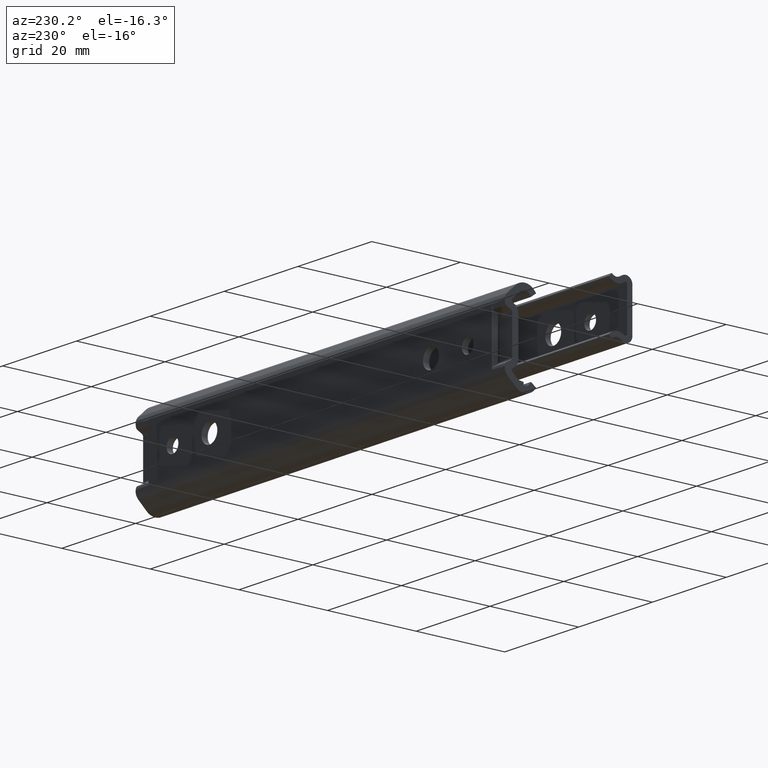
[diagram: clean part render]
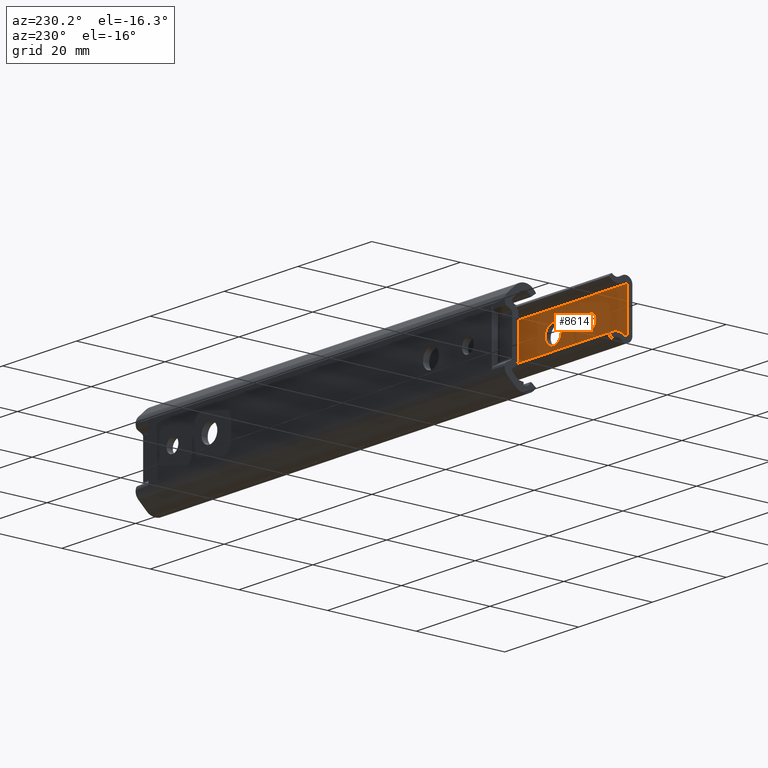
[diagram: same view with one face highlighted and labeled with its STEP entity id]
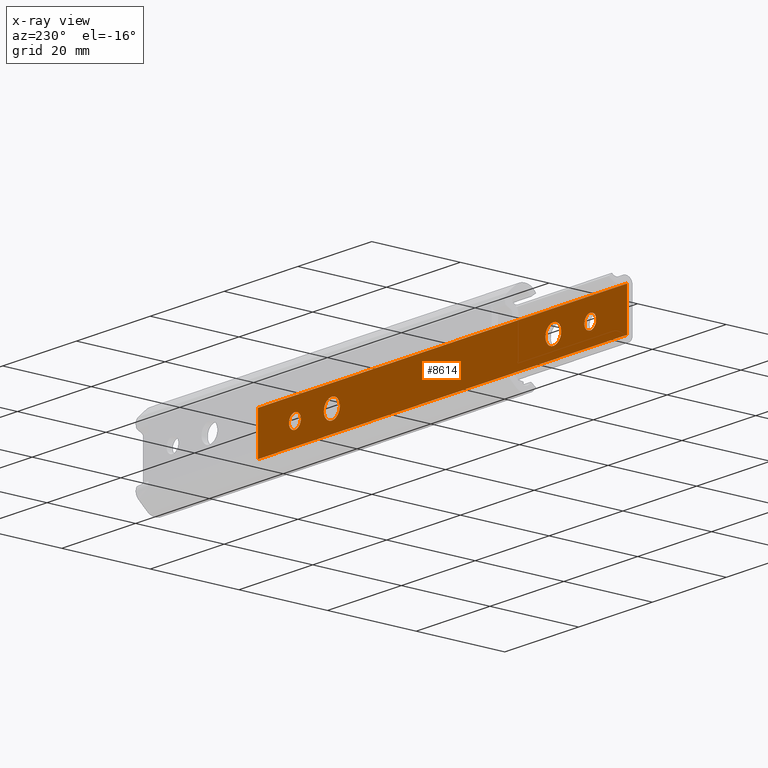
[diagram: x-ray of the same camera — body ghosted, the highlighted face saturated]
A machine part, auxiliary view. The second image highlights one B-rep face of the part: STEP entity #8614.
The next image is the same camera in x-ray: the body ghosted, the highlighted face saturated — about 0% of this face is hidden behind the body in this view.
In plain terms, the highlighted face is a freeform B-spline surface patch.
Its self-contained STEP definition (entity closure, byte-faithful):
#7496=CARTESIAN_POINT('',(-16.588815242049389,-6.800000000000001,0.188854776565360));
#7497=VERTEX_POINT('',#7496);
#7498=CARTESIAN_POINT('',(-15.0,-6.800000000000000,-1.600000000000000));
#7499=VERTEX_POINT('',#7498);
#7500=CARTESIAN_POINT('',(-16.588815242049389,-6.800000000000002,0.188854776565360));
#7501=CARTESIAN_POINT('',(-16.600000000000005,-6.800000000000001,0.094758592569386));
#7502=CARTESIAN_POINT('',(-16.600000000000001,-6.800000000000000,0.0));
#7503=CARTESIAN_POINT('',(-16.600000000000001,-6.800000000000002,-1.600000000000000));
#7504=CARTESIAN_POINT('',(-15.0,-6.800000000000000,-1.600000000000000));
#7512=(BOUNDED_CURVE()B_SPLINE_CURVE(2,(#7500,#7501,#7502,#7503,#7504),.UNSPECIFIED.,.F.,.U.)B_SPLINE_CURVE_WITH_KNOTS((3,2,3),(0.729562473278534,0.750000000000000,1.0),.UNSPECIFIED.)CURVE()GEOMETRIC_REPRESENTATION_ITEM()RATIONAL_B_SPLINE_CURVE((0.956026753723140,0.976055948055856,1.0,0.707106781186548,1.0))REPRESENTATION_ITEM(''));
#7513=EDGE_CURVE('',#7497,#7499,#7512,.T.);
#7554=CARTESIAN_POINT('',(-13.402984322553239,-6.800000000000000,-0.097677663717326));
#7555=VERTEX_POINT('',#7554);
#7561=CARTESIAN_POINT('',(-15.0,-6.800000000000000,-1.600000000000000));
#7562=CARTESIAN_POINT('',(-13.494870293822512,-6.800000000000002,-1.600000000000001));
#7563=CARTESIAN_POINT('',(-13.402984322553246,-6.800000000000000,-0.097677663717326));
#7571=(BOUNDED_CURVE()B_SPLINE_CURVE(2,(#7561,#7562,#7563),.UNSPECIFIED.,.F.,.U.)B_SPLINE_CURVE_WITH_KNOTS((3,3),(0.0,0.239332962142233),.UNSPECIFIED.)CURVE()GEOMETRIC_REPRESENTATION_ITEM()RATIONAL_B_SPLINE_CURVE((1.0,0.719603993400013,0.976072041459449))REPRESENTATION_ITEM(''));
#7572=EDGE_CURVE('',#7499,#7555,#7571,.T.);
#7595=CARTESIAN_POINT('',(-15.0,-6.800000000000000,1.600000000000000));
#7596=VERTEX_POINT('',#7595);
#7597=CARTESIAN_POINT('',(-15.0,-6.800000000000000,1.600000000000000));
#7598=CARTESIAN_POINT('',(-16.421079239514395,-6.800000000000000,1.599999999999999));
#7599=CARTESIAN_POINT('',(-16.588815242049392,-6.800000000000001,0.188854776565360));
#7607=(BOUNDED_CURVE()B_SPLINE_CURVE(2,(#7597,#7598,#7599),.UNSPECIFIED.,.F.,.U.)B_SPLINE_CURVE_WITH_KNOTS((3,3),(0.500000000000000,0.729562473278535),.UNSPECIFIED.)CURVE()GEOMETRIC_REPRESENTATION_ITEM()RATIONAL_B_SPLINE_CURVE((1.0,0.731050833130691,0.956026753723142))REPRESENTATION_ITEM(''));
#7608=EDGE_CURVE('',#7596,#7497,#7607,.T.);
#7610=CARTESIAN_POINT('',(-13.402984322553246,-6.800000000000001,-0.097677663717326));
#7611=CARTESIAN_POINT('',(-13.400000000000000,-6.800000000000001,-0.048884421740591));
#7612=CARTESIAN_POINT('',(-13.400000000000000,-6.800000000000000,0.0));
#7613=CARTESIAN_POINT('',(-13.399999999999999,-6.800000000000002,1.600000000000000));
#7614=CARTESIAN_POINT('',(-15.0,-6.800000000000000,1.600000000000000));
#7622=(BOUNDED_CURVE()B_SPLINE_CURVE(2,(#7610,#7611,#7612,#7613,#7614),.UNSPECIFIED.,.F.,.U.)B_SPLINE_CURVE_WITH_KNOTS((3,2,3),(0.239332962142233,0.250000000000000,0.500000000000000),.UNSPECIFIED.)CURVE()GEOMETRIC_REPRESENTATION_ITEM()RATIONAL_B_SPLINE_CURVE((0.976072041459449,0.987502787786534,1.0,0.707106781186548,1.0))REPRESENTATION_ITEM(''));
#7623=EDGE_CURVE('',#7555,#7596,#7622,.T.);
#7682=CARTESIAN_POINT('',(-7.134970481671571,-6.800000000000000,0.253773604598790));
#7683=VERTEX_POINT('',#7682);
#7684=CARTESIAN_POINT('',(-5.0,-6.800000000000000,-2.150000000000000));
#7685=VERTEX_POINT('',#7684);
#7686=CARTESIAN_POINT('',(-7.134970481671571,-6.800000000000000,0.253773604598790));
#7687=CARTESIAN_POINT('',(-7.150000000000000,-6.800000000000000,0.127331857339283));
#7688=CARTESIAN_POINT('',(-7.150000000000000,-6.800000000000000,0.0));
#7689=CARTESIAN_POINT('',(-7.150000000000003,-6.800000000000003,-2.150000000000000));
#7690=CARTESIAN_POINT('',(-5.0,-6.800000000000000,-2.150000000000000));
#7698=(BOUNDED_CURVE()B_SPLINE_CURVE(2,(#7686,#7687,#7688,#7689,#7690),.UNSPECIFIED.,.F.,.U.)B_SPLINE_CURVE_WITH_KNOTS((3,2,3),(0.729562473501909,0.750000000000000,1.0),.UNSPECIFIED.)CURVE()GEOMETRIC_REPRESENTATION_ITEM()RATIONAL_B_SPLINE_CURVE((0.956026754160963,0.976055948317555,1.0,0.707106781186547,1.0))REPRESENTATION_ITEM(''));
#7699=EDGE_CURVE('',#7683,#7685,#7698,.T.);
#7740=CARTESIAN_POINT('',(-2.854010183405838,-6.800000000000000,-0.131254360210068));
#7741=VERTEX_POINT('',#7740);
#7747=CARTESIAN_POINT('',(-5.0,-6.800000000000000,-2.150000000000000));
#7748=CARTESIAN_POINT('',(-2.977481956549565,-6.800000000000001,-2.150000000000000));
#7749=CARTESIAN_POINT('',(-2.854010183405838,-6.800000000000001,-0.131254360210068));
#7757=(BOUNDED_CURVE()B_SPLINE_CURVE(2,(#7747,#7748,#7749),.UNSPECIFIED.,.F.,.U.)B_SPLINE_CURVE_WITH_KNOTS((3,3),(0.0,0.239332962208178),.UNSPECIFIED.)CURVE()GEOMETRIC_REPRESENTATION_ITEM()RATIONAL_B_SPLINE_CURVE((1.0,0.719603993322753,0.976072041600784))REPRESENTATION_ITEM(''));
#7758=EDGE_CURVE('',#7685,#7741,#7757,.T.);
#7781=CARTESIAN_POINT('',(-5.0,-6.800000000000000,2.150000000000000));
#7782=VERTEX_POINT('',#7781);
#7783=CARTESIAN_POINT('',(-5.0,-6.800000000000000,2.150000000000000));
#7784=CARTESIAN_POINT('',(-6.909575230639137,-6.800000000000000,2.150000000000000));
#7785=CARTESIAN_POINT('',(-7.134970481671570,-6.800000000000000,0.253773604598790));
#7793=(BOUNDED_CURVE()B_SPLINE_CURVE(2,(#7783,#7784,#7785),.UNSPECIFIED.,.F.,.U.)B_SPLINE_CURVE_WITH_KNOTS((3,3),(0.500000000000000,0.729562473501908),.UNSPECIFIED.)CURVE()GEOMETRIC_REPRESENTATION_ITEM()RATIONAL_B_SPLINE_CURVE((1.0,0.731050832868994,0.956026754160961))REPRESENTATION_ITEM(''));
#7794=EDGE_CURVE('',#7782,#7683,#7793,.T.);
#7796=CARTESIAN_POINT('',(-2.854010183405838,-6.800000000000001,-0.131254360210068));
#7797=CARTESIAN_POINT('',(-2.850000000000000,-6.799999999999999,-0.065688441302680));
#7798=CARTESIAN_POINT('',(-2.850000000000000,-6.800000000000000,0.0));
#7799=CARTESIAN_POINT('',(-2.850000000000000,-6.800000000000003,2.150000000000000));
#7800=CARTESIAN_POINT('',(-5.0,-6.800000000000000,2.150000000000000));
#7808=(BOUNDED_CURVE()B_SPLINE_CURVE(2,(#7796,#7797,#7798,#7799,#7800),.UNSPECIFIED.,.F.,.U.)B_SPLINE_CURVE_WITH_KNOTS((3,2,3),(0.239332962208178,0.250000000000000,0.500000000000000),.UNSPECIFIED.)CURVE()GEOMETRIC_REPRESENTATION_ITEM()RATIONAL_B_SPLINE_CURVE((0.976072041600784,0.987502787863795,1.0,0.707106781186547,1.0))REPRESENTATION_ITEM(''));
#7809=EDGE_CURVE('',#7741,#7782,#7808,.T.);
#7868=CARTESIAN_POINT('',(52.865029518328427,-6.800000000000001,0.253773604598791));
#7869=VERTEX_POINT('',#7868);
#7870=CARTESIAN_POINT('',(55.0,-6.800000000000000,-2.150000000000000));
#7871=VERTEX_POINT('',#7870);
#7872=CARTESIAN_POINT('',(52.865029518328427,-6.800000000000001,0.253773604598791));
#7873=CARTESIAN_POINT('',(52.850000000000001,-6.800000000000000,0.127331857339284));
#7874=CARTESIAN_POINT('',(52.850000000000001,-6.800000000000000,0.0));
#7875=CARTESIAN_POINT('',(52.850000000000016,-6.800000000000003,-2.150000000000000));
#7876=CARTESIAN_POINT('',(55.0,-6.800000000000000,-2.150000000000000));
#7884=(BOUNDED_CURVE()B_SPLINE_CURVE(2,(#7872,#7873,#7874,#7875,#7876),.UNSPECIFIED.,.F.,.U.)B_SPLINE_CURVE_WITH_KNOTS((3,2,3),(0.729562473501909,0.750000000000000,1.0),.UNSPECIFIED.)CURVE()GEOMETRIC_REPRESENTATION_ITEM()RATIONAL_B_SPLINE_CURVE((0.956026754160963,0.976055948317555,1.0,0.707106781186547,1.0))REPRESENTATION_ITEM(''));
#7885=EDGE_CURVE('',#7869,#7871,#7884,.T.);
#7926=CARTESIAN_POINT('',(57.145989816594160,-6.800000000000001,-0.131254360210067));
#7927=VERTEX_POINT('',#7926);
#7933=CARTESIAN_POINT('',(55.0,-6.800000000000000,-2.150000000000000));
#7934=CARTESIAN_POINT('',(57.022518043450425,-6.800000000000001,-2.150000000000000));
#7935=CARTESIAN_POINT('',(57.145989816594160,-6.800000000000001,-0.131254360210067));
#7943=(BOUNDED_CURVE()B_SPLINE_CURVE(2,(#7933,#7934,#7935),.UNSPECIFIED.,.F.,.U.)B_SPLINE_CURVE_WITH_KNOTS((3,3),(0.0,0.239332962208179),.UNSPECIFIED.)CURVE()GEOMETRIC_REPRESENTATION_ITEM()RATIONAL_B_SPLINE_CURVE((1.0,0.719603993322753,0.976072041600784))REPRESENTATION_ITEM(''));
#7944=EDGE_CURVE('',#7871,#7927,#7943,.T.);
#7967=CARTESIAN_POINT('',(55.0,-6.800000000000000,2.150000000000000));
#7968=VERTEX_POINT('',#7967);
#7969=CARTESIAN_POINT('',(55.0,-6.800000000000000,2.150000000000000));
#7970=CARTESIAN_POINT('',(53.090424769360865,-6.800000000000000,2.150000000000000));
#7971=CARTESIAN_POINT('',(52.865029518328434,-6.800000000000001,0.253773604598791));
#7979=(BOUNDED_CURVE()B_SPLINE_CURVE(2,(#7969,#7970,#7971),.UNSPECIFIED.,.F.,.U.)B_SPLINE_CURVE_WITH_KNOTS((3,3),(0.500000000000000,0.729562473501908),.UNSPECIFIED.)CURVE()GEOMETRIC_REPRESENTATION_ITEM()RATIONAL_B_SPLINE_CURVE((1.0,0.731050832868994,0.956026754160961))REPRESENTATION_ITEM(''));
#7980=EDGE_CURVE('',#7968,#7869,#7979,.T.);
#7982=CARTESIAN_POINT('',(57.145989816594167,-6.800000000000001,-0.131254360210067));
#7983=CARTESIAN_POINT('',(57.150000000000006,-6.800000000000001,-0.065688441302680));
#7984=CARTESIAN_POINT('',(57.149999999999999,-6.800000000000000,0.0));
#7985=CARTESIAN_POINT('',(57.149999999999999,-6.800000000000003,2.150000000000000));
#7986=CARTESIAN_POINT('',(55.0,-6.800000000000000,2.150000000000000));
#7994=(BOUNDED_CURVE()B_SPLINE_CURVE(2,(#7982,#7983,#7984,#7985,#7986),.UNSPECIFIED.,.F.,.U.)B_SPLINE_CURVE_WITH_KNOTS((3,2,3),(0.239332962208178,0.250000000000000,0.500000000000000),.UNSPECIFIED.)CURVE()GEOMETRIC_REPRESENTATION_ITEM()RATIONAL_B_SPLINE_CURVE((0.976072041600784,0.987502787863795,1.0,0.707106781186547,1.0))REPRESENTATION_ITEM(''));
#7995=EDGE_CURVE('',#7927,#7968,#7994,.T.);
#8054=CARTESIAN_POINT('',(63.411184757950622,-6.799999999999999,0.188854776565361));
#8055=VERTEX_POINT('',#8054);
#8056=CARTESIAN_POINT('',(65.0,-6.800000000000000,-1.600000000000000));
#8057=VERTEX_POINT('',#8056);
#8058=CARTESIAN_POINT('',(63.411184757950608,-6.799999999999999,0.188854776565361));
#8059=CARTESIAN_POINT('',(63.399999999999991,-6.799999999999998,0.094758592569386));
#8060=CARTESIAN_POINT('',(63.399999999999999,-6.800000000000000,0.0));
#8061=CARTESIAN_POINT('',(63.399999999999999,-6.800000000000002,-1.600000000000000));
#8062=CARTESIAN_POINT('',(65.0,-6.800000000000000,-1.600000000000000));
#8070=(BOUNDED_CURVE()B_SPLINE_CURVE(2,(#8058,#8059,#8060,#8061,#8062),.UNSPECIFIED.,.F.,.U.)B_SPLINE_CURVE_WITH_KNOTS((3,2,3),(0.729562473278534,0.750000000000000,1.0),.UNSPECIFIED.)CURVE()GEOMETRIC_REPRESENTATION_ITEM()RATIONAL_B_SPLINE_CURVE((0.956026753723140,0.976055948055856,1.0,0.707106781186548,1.0))REPRESENTATION_ITEM(''));
#8071=EDGE_CURVE('',#8055,#8057,#8070,.T.);
#8112=CARTESIAN_POINT('',(66.597015677446763,-6.800000000000000,-0.097677663717326));
#8113=VERTEX_POINT('',#8112);
#8119=CARTESIAN_POINT('',(65.0,-6.800000000000000,-1.600000000000000));
#8120=CARTESIAN_POINT('',(66.505129706177499,-6.800000000000001,-1.600000000000000));
#8121=CARTESIAN_POINT('',(66.597015677446763,-6.800000000000000,-0.097677663717326));
#8129=(BOUNDED_CURVE()B_SPLINE_CURVE(2,(#8119,#8120,#8121),.UNSPECIFIED.,.F.,.U.)B_SPLINE_CURVE_WITH_KNOTS((3,3),(0.0,0.239332962142233),.UNSPECIFIED.)CURVE()GEOMETRIC_REPRESENTATION_ITEM()RATIONAL_B_SPLINE_CURVE((1.0,0.719603993400014,0.976072041459449))REPRESENTATION_ITEM(''));
#8130=EDGE_CURVE('',#8057,#8113,#8129,.T.);
#8153=CARTESIAN_POINT('',(65.0,-6.800000000000000,1.600000000000000));
#8154=VERTEX_POINT('',#8153);
#8155=CARTESIAN_POINT('',(65.0,-6.800000000000000,1.600000000000000));
#8156=CARTESIAN_POINT('',(63.578920760485595,-6.800000000000000,1.599999999999999));
#8157=CARTESIAN_POINT('',(63.411184757950615,-6.799999999999999,0.188854776565361));
#8165=(BOUNDED_CURVE()B_SPLINE_CURVE(2,(#8155,#8156,#8157),.UNSPECIFIED.,.F.,.U.)B_SPLINE_CURVE_WITH_KNOTS((3,3),(0.500000000000000,0.729562473278535),.UNSPECIFIED.)CURVE()GEOMETRIC_REPRESENTATION_ITEM()RATIONAL_B_SPLINE_CURVE((1.0,0.731050833130691,0.956026753723142))REPRESENTATION_ITEM(''));
#8166=EDGE_CURVE('',#8154,#8055,#8165,.T.);
#8168=CARTESIAN_POINT('',(66.597015677446763,-6.800000000000000,-0.097677663717326));
#8169=CARTESIAN_POINT('',(66.600000000000009,-6.799999999999999,-0.048884421740591));
#8170=CARTESIAN_POINT('',(66.600000000000009,-6.800000000000000,0.0));
#8171=CARTESIAN_POINT('',(66.600000000000009,-6.800000000000002,1.600000000000000));
#8172=CARTESIAN_POINT('',(65.0,-6.800000000000000,1.600000000000000));
#8180=(BOUNDED_CURVE()B_SPLINE_CURVE(2,(#8168,#8169,#8170,#8171,#8172),.UNSPECIFIED.,.F.,.U.)B_SPLINE_CURVE_WITH_KNOTS((3,2,3),(0.239332962142233,0.250000000000000,0.500000000000000),.UNSPECIFIED.)CURVE()GEOMETRIC_REPRESENTATION_ITEM()RATIONAL_B_SPLINE_CURVE((0.976072041459449,0.987502787786534,1.0,0.707106781186548,1.0))REPRESENTATION_ITEM(''));
#8181=EDGE_CURVE('',#8113,#8154,#8180,.T.);
#8262=CARTESIAN_POINT('',(-25.0,-6.800000000000080,4.641039999999910));
#8263=VERTEX_POINT('',#8262);
#8279=CARTESIAN_POINT('',(-25.0,-6.800000000000000,-4.641040000000000));
#8280=VERTEX_POINT('',#8279);
#8281=CARTESIAN_POINT('',(-25.0,-6.800000000000080,4.641039999999910));
#8282=CARTESIAN_POINT('',(-25.0,-6.800000000000000,-4.641040000000000));
#8283=QUASI_UNIFORM_CURVE('',1,(#8281,#8282),.UNSPECIFIED.,.F.,.U.);
#8284=EDGE_CURVE('',#8263,#8280,#8283,.T.);
#8504=CARTESIAN_POINT('',(75.0,-6.800000000000080,-4.641040000000000));
#8505=VERTEX_POINT('',#8504);
#8521=CARTESIAN_POINT('',(75.0,-6.800000000000000,4.641039999999910));
#8522=VERTEX_POINT('',#8521);
#8523=CARTESIAN_POINT('',(75.0,-6.800000000000080,-4.641040000000000));
#8524=CARTESIAN_POINT('',(75.0,-6.800000000000000,4.641039999999910));
#8525=QUASI_UNIFORM_CURVE('',1,(#8523,#8524),.UNSPECIFIED.,.F.,.U.);
#8526=EDGE_CURVE('',#8505,#8522,#8525,.T.);
#8560=CARTESIAN_POINT('',(75.0,-6.800000000000000,4.641039999999910));
#8561=CARTESIAN_POINT('',(-25.0,-6.800000000000080,4.641039999999910));
#8562=QUASI_UNIFORM_CURVE('',1,(#8560,#8561),.UNSPECIFIED.,.F.,.U.);
#8563=EDGE_CURVE('',#8522,#8263,#8562,.T.);
#8575=CARTESIAN_POINT('',(-29.994999806180601,-6.800000000000000,5.104679757713797));
#8576=CARTESIAN_POINT('',(-29.994999806180601,-6.800000000000000,-5.104679425760839));
#8577=CARTESIAN_POINT('',(79.995002488389616,-6.800000000000000,5.104679757713797));
#8578=CARTESIAN_POINT('',(79.995002488389616,-6.800000000000000,-5.104679425760839));
#8579=B_SPLINE_SURFACE_WITH_KNOTS('',1,1,((#8575,#8577),(#8576,#8578)),.UNSPECIFIED.,.F.,.F.,.U.,(2,2),(2,2),(0.0,10.209359183474641),(0.0,109.990002294570200),.UNSPECIFIED.);
#8580=CARTESIAN_POINT('',(75.0,-6.800000000000080,-4.641040000000000));
#8581=CARTESIAN_POINT('',(-25.0,-6.800000000000000,-4.641040000000000));
#8582=QUASI_UNIFORM_CURVE('',1,(#8580,#8581),.UNSPECIFIED.,.F.,.U.);
#8583=EDGE_CURVE('',#8505,#8280,#8582,.T.);
#8584=ORIENTED_EDGE('',*,*,#8583,.T.);
#8585=ORIENTED_EDGE('',*,*,#8284,.F.);
#8586=ORIENTED_EDGE('',*,*,#8563,.F.);
#8587=ORIENTED_EDGE('',*,*,#8526,.F.);
#8588=EDGE_LOOP('',(#8584,#8585,#8586,#8587));
#8589=FACE_OUTER_BOUND('',#8588,.T.);
#8590=ORIENTED_EDGE('',*,*,#8130,.T.);
#8591=ORIENTED_EDGE('',*,*,#8181,.T.);
#8592=ORIENTED_EDGE('',*,*,#8166,.T.);
#8593=ORIENTED_EDGE('',*,*,#8071,.T.);
#8594=EDGE_LOOP('',(#8590,#8591,#8592,#8593));
#8595=FACE_BOUND('',#8594,.T.);
#8596=ORIENTED_EDGE('',*,*,#7944,.T.);
#8597=ORIENTED_EDGE('',*,*,#7995,.T.);
#8598=ORIENTED_EDGE('',*,*,#7980,.T.);
#8599=ORIENTED_EDGE('',*,*,#7885,.T.);
#8600=EDGE_LOOP('',(#8596,#8597,#8598,#8599));
#8601=FACE_BOUND('',#8600,.T.);
#8602=ORIENTED_EDGE('',*,*,#7758,.T.);
#8603=ORIENTED_EDGE('',*,*,#7809,.T.);
#8604=ORIENTED_EDGE('',*,*,#7794,.T.);
#8605=ORIENTED_EDGE('',*,*,#7699,.T.);
#8606=EDGE_LOOP('',(#8602,#8603,#8604,#8605));
#8607=FACE_BOUND('',#8606,.T.);
#8608=ORIENTED_EDGE('',*,*,#7572,.T.);
#8609=ORIENTED_EDGE('',*,*,#7623,.T.);
#8610=ORIENTED_EDGE('',*,*,#7608,.T.);
#8611=ORIENTED_EDGE('',*,*,#7513,.T.);
#8612=EDGE_LOOP('',(#8608,#8609,#8610,#8611));
#8613=FACE_BOUND('',#8612,.T.);
#8614=ADVANCED_FACE('',(#8589,#8595,#8601,#8607,#8613),#8579,.F.);